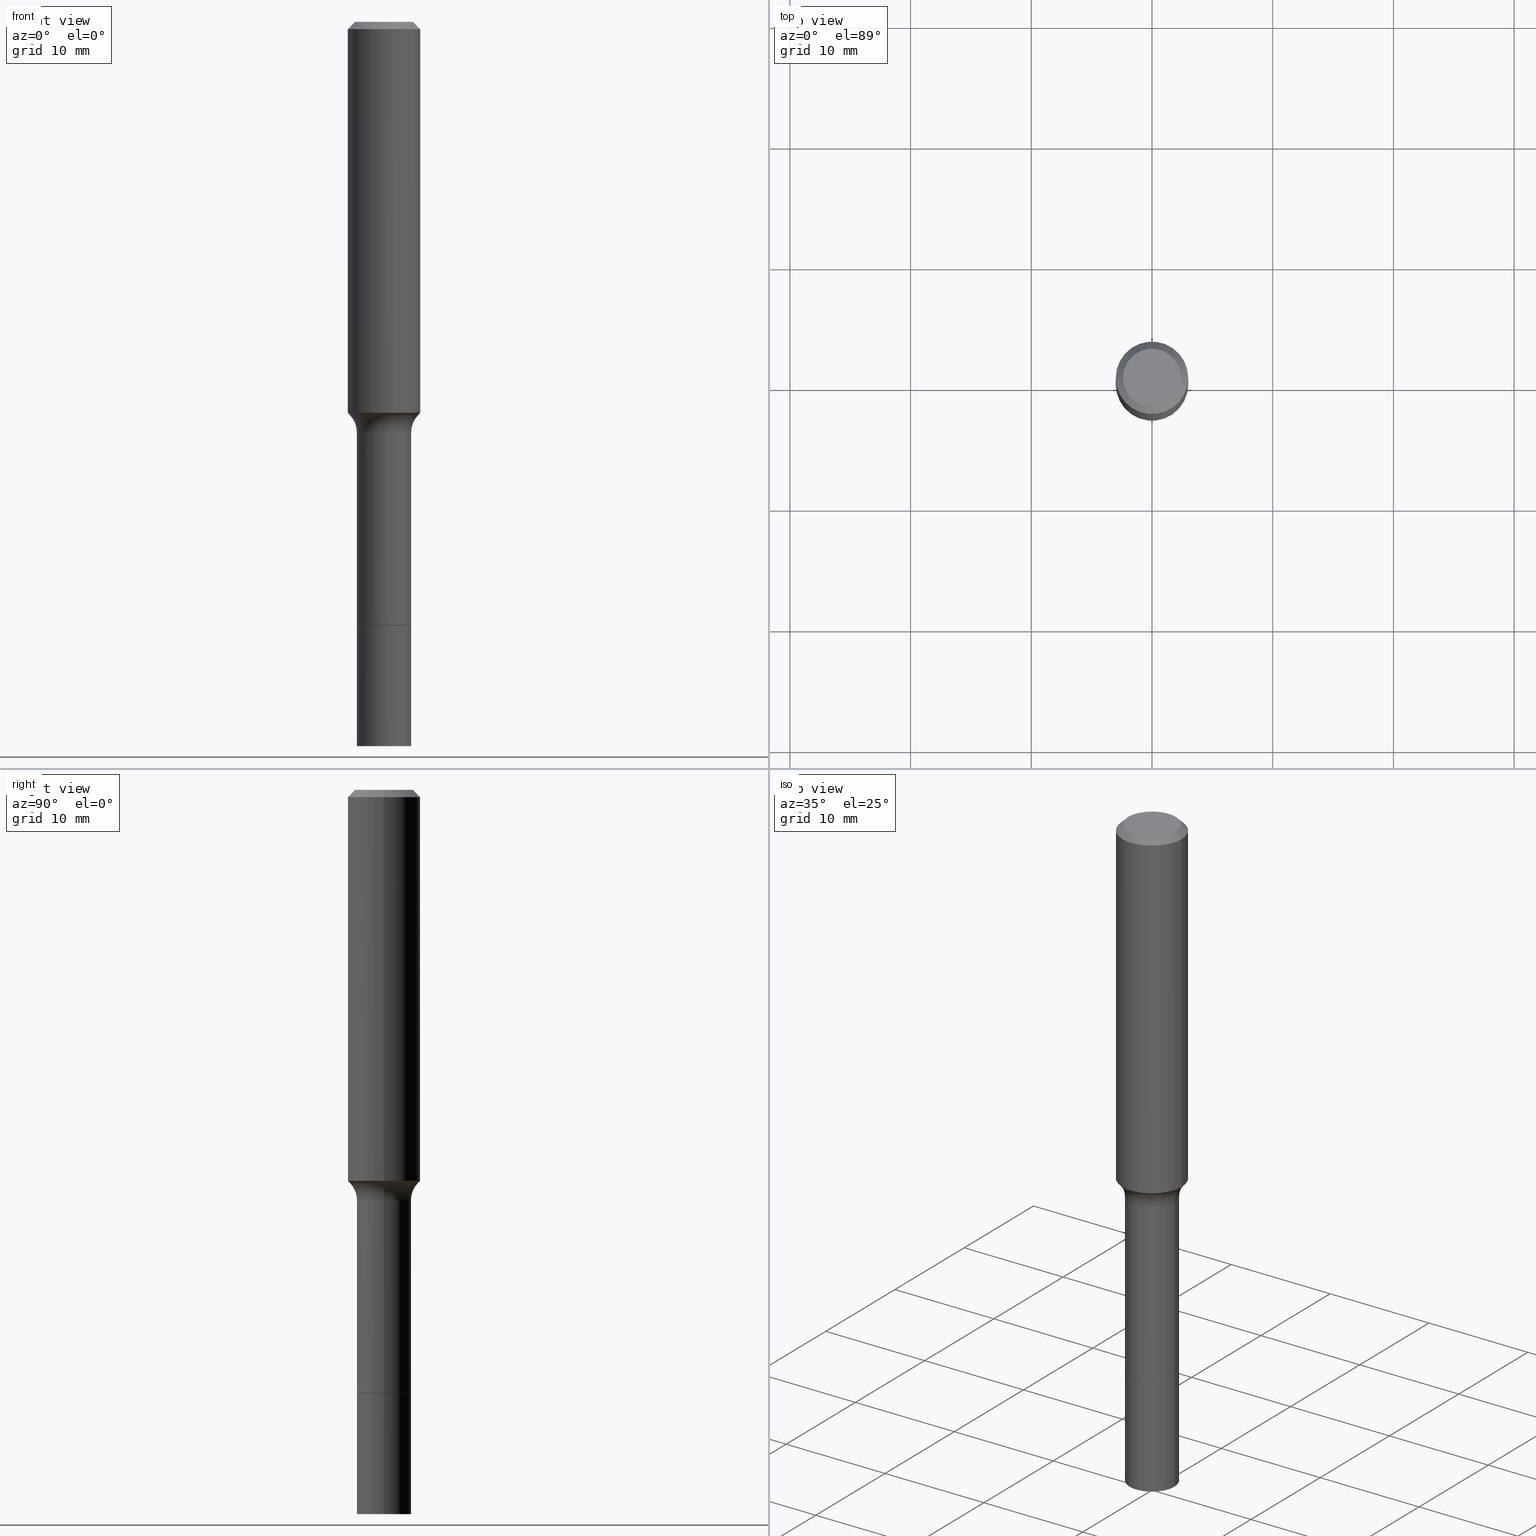
[diagram: canonical four-view strip — front | top / right | iso, engineering-drawing reading convention]
A machine part, canonical four-view strip (front | top / right | iso — engineering-drawing reading convention). The complete STEP part file that produces these views, byte-faithful:
ISO-10303-21;
HEADER;
FILE_DESCRIPTION (( 'STEP AP203' ),
    '1' );
FILE_NAME ('67090.STEP',
    '2025-04-01T15:28:09',
    ( '' ),
    ( '' ),
    'SwSTEP 2.0',
    'SolidWorks 2024',
    '' );
FILE_SCHEMA (( 'CONFIG_CONTROL_DESIGN' ));
ENDSEC;

DATA;
#1 = DIRECTION ( 'NONE',  ( 1.000000000000000000, -6.982962677686262766E-15, 0.000000000000000000 ) ) ;
#2 = AXIS2_PLACEMENT_3D ( 'NONE', #116, #88, #496 ) ;
#3 = AXIS2_PLACEMENT_3D ( 'NONE', #336, #412, #455 ) ;
#4 = CARTESIAN_POINT ( 'NONE',  ( 0.1180999999999999966, -9.071566814582237199E-16, -0.02362000000000014435 ) ) ;
#5 = DIRECTION ( 'NONE',  ( 2.438088387897960049E-29, -3.491481338843145188E-15, -1.000000000000000000 ) ) ;
#6 = ORIENTED_EDGE ( 'NONE', *, *, #467, .F. ) ;
#7 = COORDINATED_UNIVERSAL_TIME_OFFSET ( 5, 0, .BEHIND. ) ;
#8 = FACE_OUTER_BOUND ( 'NONE', #444, .T. ) ;
#9 = VERTEX_POINT ( 'NONE', #100 ) ;
#10 = ADVANCED_FACE ( 'NONE', ( #299 ), #511, .T. ) ;
#11 = AXIS2_PLACEMENT_3D ( 'NONE', #398, #5, #199 ) ;
#12 = LOCAL_TIME ( 11, 28, 9.000000000000000000, #339 ) ;
#13 = CARTESIAN_POINT ( 'NONE',  ( 4.813171704333585481E-29, -6.871933571111078805E-15, -1.968199999999999950 ) ) ;
#14 = ORIENTED_EDGE ( 'NONE', *, *, #29, .T. ) ;
#15 = CARTESIAN_POINT ( 'NONE',  ( 0.08859999999999994269, -6.186904932430028543E-16, 4.320292623355196663E-30 ) ) ;
#16 = ORIENTED_EDGE ( 'NONE', *, *, #171, .F. ) ;
#17 = EDGE_CURVE ( 'NONE', #411, #164, #513, .T. ) ;
#18 = FACE_OUTER_BOUND ( 'NONE', #328, .T. ) ;
#19 = ORIENTED_EDGE ( 'NONE', *, *, #249, .F. ) ;
#20 = CIRCLE ( 'NONE', #435, 0.08859999999999999820 ) ;
#21 = VECTOR ( 'NONE', #181, 39.37007874015748143 ) ;
#22 = DIRECTION ( 'NONE',  ( -2.445468806185136877E-29, 3.491481338843145188E-15, 1.000000000000000000 ) ) ;
#23 = CARTESIAN_POINT ( 'NONE',  ( -0.08860000000000010922, -6.930214530979727604E-15, -2.362200000000000077 ) ) ;
#24 = ORIENTED_EDGE ( 'NONE', *, *, #35, .F. ) ;
#25 = FACE_OUTER_BOUND ( 'NONE', #501, .T. ) ;
#26 = AXIS2_PLACEMENT_3D ( 'NONE', #436, #151, #187 ) ;
#27 = ORIENTED_EDGE ( 'NONE', *, *, #202, .T. ) ;
#28 = ORIENTED_EDGE ( 'NONE', *, *, #29, .F. ) ;
#29 = EDGE_CURVE ( 'NONE', #495, #330, #474, .T. ) ;
#30 = CARTESIAN_POINT ( 'NONE',  ( 4.813171704333585481E-29, -6.871933571111078805E-15, -1.968199999999999950 ) ) ;
#31 = CIRCLE ( 'NONE', #371, 0.07999999999999996003 ) ;
#32 = CARTESIAN_POINT ( 'NONE',  ( 4.811948969930493801E-29, -6.870187830441658090E-15, -1.967700000000000227 ) ) ;
#33 = CARTESIAN_POINT ( 'NONE',  ( 3.118100589234994033E-29, -4.451821259144535962E-15, -1.275052285005076280 ) ) ;
#34 = DIRECTION ( 'NONE',  ( -2.445468806185136597E-29, 3.491481338843145583E-15, 1.000000000000000000 ) ) ;
#35 = EDGE_CURVE ( 'NONE', #245, #253, #180, .T. ) ;
#36 = CYLINDRICAL_SURFACE ( 'NONE', #128, 0.1181000000000000660 ) ;
#37 = AXIS2_PLACEMENT_3D ( 'NONE', #356, #160, #318 ) ;
#38 = APPROVAL_ROLE ( '' ) ;
#39 = CARTESIAN_POINT ( 'NONE',  ( 3.139101899204769565E-29, -4.481805563857511051E-15, -1.283640131195000311 ) ) ;
#40 = ORIENTED_EDGE ( 'NONE', *, *, #409, .F. ) ;
#41 = EDGE_CURVE ( 'NONE', #447, #158, #143, .T. ) ;
#42 = DIRECTION ( 'NONE',  ( 1.000000000000000000, -6.982962677686266711E-15, 0.000000000000000000 ) ) ;
#43 = ORIENTED_EDGE ( 'NONE', *, *, #117, .F. ) ;
#44 = DATE_AND_TIME ( #316, #335 ) ;
#45 = PLANE ( 'NONE',  #169 ) ;
#46 = EDGE_LOOP ( 'NONE', ( #27, #132, #286, #168 ) ) ;
#47 = CIRCLE ( 'NONE', #488, 0.09447999999999998066 ) ;
#48 = DIRECTION ( 'NONE',  ( -2.445468806185136597E-29, 3.491481338843145583E-15, 1.000000000000000000 ) ) ;
#49 = ORIENTED_EDGE ( 'NONE', *, *, #110, .F. ) ;
#50 = EDGE_CURVE ( 'NONE', #379, #9, #479, .T. ) ;
#51 = CARTESIAN_POINT ( 'NONE',  ( 4.813171704333585481E-29, -6.871933571111078805E-15, -1.968199999999999950 ) ) ;
#52 = EDGE_LOOP ( 'NONE', ( #43, #231, #331, #382 ) ) ;
#53 = DIRECTION ( 'NONE',  ( -2.445468806185136597E-29, 3.491481338843145583E-15, 1.000000000000000000 ) ) ;
#54 = DIRECTION ( 'NONE',  ( 1.000000000000000000, -6.982962677686265133E-15, 0.000000000000000000 ) ) ;
#55 = AXIS2_PLACEMENT_3D ( 'NONE', #177, #112, #385 ) ;
#56 = CIRCLE ( 'NONE', #344, 0.09447999999999998066 ) ;
#57 = DIRECTION ( 'NONE',  ( -2.445468806185136597E-29, 3.491481338843145583E-15, 1.000000000000000000 ) ) ;
#58 = ORIENTED_EDGE ( 'NONE', *, *, #284, .T. ) ;
#59 = DIRECTION ( 'NONE',  ( 1.000000000000000000, -6.982962677686264344E-15, 0.000000000000000000 ) ) ;
#60 = EDGE_CURVE ( 'NONE', #208, #354, #47, .T. ) ;
#61 = CARTESIAN_POINT ( 'NONE',  ( 3.139101899204769565E-29, -4.481805563857511051E-15, -1.283640131195000311 ) ) ;
#62 = DIRECTION ( 'NONE',  ( 1.000000000000000000, -6.982962677686266711E-15, 4.876176775795936353E-29 ) ) ;
#63 = LOCAL_TIME ( 11, 28, 9.000000000000000000, #392 ) ;
#64 = DIRECTION ( 'NONE',  ( -0.7071067811866199593, 7.493145998870616062E-15, 0.7071067811864750752 ) ) ;
#65 = EDGE_CURVE ( 'NONE', #9, #245, #137, .T. ) ;
#66 = CARTESIAN_POINT ( 'NONE',  ( 4.813171704333585481E-29, -6.871933571111078805E-15, -1.968199999999999950 ) ) ;
#67 = CALENDAR_DATE ( 2025, 1, 4 ) ;
#68 = DIRECTION ( 'NONE',  ( -2.445468806185136597E-29, 3.491481338843145583E-15, 1.000000000000000000 ) ) ;
#69 = CONICAL_SURFACE ( 'NONE', #459, 0.1100917038704662398, 0.7504915783575496491 ) ;
#70 = DIRECTION ( 'NONE',  ( 1.000000000000000000, -6.982962677686269077E-15, 0.000000000000000000 ) ) ;
#71 = DIRECTION ( 'NONE',  ( -2.445468806185136597E-29, 3.491481338843145583E-15, 1.000000000000000000 ) ) ;
#72 = ADVANCED_FACE ( 'NONE', ( #25 ), #428, .T. ) ;
#73 = DIRECTION ( 'NONE',  ( 1.000000000000000000, -6.982962677686266711E-15, 4.876176775795936353E-29 ) ) ;
#74 = DATE_AND_TIME ( #105, #63 ) ;
#75 = DIRECTION ( 'NONE',  ( -1.000000000000000000, 7.105427357601001859E-15, 0.000000000000000000 ) ) ;
#76 = AXIS2_PLACEMENT_3D ( 'NONE', #478, #309, #481 ) ;
#77 = CIRCLE ( 'NONE', #153, 0.08859999999999999820 ) ;
#78 = DATE_AND_TIME ( #439, #350 ) ;
#79 = EDGE_CURVE ( 'NONE', #281, #127, #395, .T. ) ;
#80 = LINE ( 'NONE', #167, #272 ) ;
#81 = EDGE_LOOP ( 'NONE', ( #236, #40 ) ) ;
#82 = PERSON_AND_ORGANIZATION ( #243, #360 ) ;
#83 = CARTESIAN_POINT ( 'NONE',  ( 4.813171704333585481E-29, -6.871933571111078805E-15, -1.968199999999999950 ) ) ;
#84 = EDGE_LOOP ( 'NONE', ( #174, #119 ) ) ;
#85 = DIRECTION ( 'NONE',  ( 1.000000000000000000, -6.982962677686266711E-15, 4.876176775795936353E-29 ) ) ;
#86 = MANIFOLD_SOLID_BREP ( 'Body-Move/Copy2[1]', #263 ) ;
#87 = ORIENTED_EDGE ( 'NONE', *, *, #257, .T. ) ;
#88 = DIRECTION ( 'NONE',  ( -2.445468806185136597E-29, 3.491481338843145583E-15, 1.000000000000000000 ) ) ;
#89 = ORIENTED_EDGE ( 'NONE', *, *, #17, .F. ) ;
#90 = DIRECTION ( 'NONE',  ( 1.000000000000000000, 0.000000000000000000, 0.000000000000000000 ) ) ;
#91 = ORIENTED_EDGE ( 'NONE', *, *, #110, .T. ) ;
#92 = CARTESIAN_POINT ( 'NONE',  ( 3.272526356436949336E-29, -4.672300327639896745E-15, -1.338200000000000056 ) ) ;
#93 = ORIENTED_EDGE ( 'NONE', *, *, #509, .T. ) ;
#94 = AXIS2_PLACEMENT_3D ( 'NONE', #51, #122, #282 ) ;
#95 = CC_DESIGN_PERSON_AND_ORGANIZATION_ASSIGNMENT ( #512, #349, ( #277 ) ) ;
#96 = VECTOR ( 'NONE', #466, 39.37007874015748143 ) ;
#97 = CARTESIAN_POINT ( 'NONE',  ( 0.08809999999999999776, -7.487132583015239540E-15, -1.968199999999999950 ) ) ;
#98 = DIRECTION ( 'NONE',  ( -2.445468806185136597E-29, 3.491481338843145583E-15, 1.000000000000000000 ) ) ;
#99 =( NAMED_UNIT ( * ) SI_UNIT ( $, .STERADIAN. ) SOLID_ANGLE_UNIT ( ) );
#100 = CARTESIAN_POINT ( 'NONE',  ( -0.08809999999999999776, -6.243296193732320441E-15, -1.968199999999999950 ) ) ;
#101 =( LENGTH_UNIT ( ) NAMED_UNIT ( * ) SI_UNIT ( $, .METRE. ) );
#102 = DIRECTION ( 'NONE',  ( -2.445468806185136597E-29, 3.491481338843145583E-15, 1.000000000000000000 ) ) ;
#103 = ADVANCED_FACE ( 'NONE', ( #267 ), #200, .T. ) ;
#104 = VECTOR ( 'NONE', #22, 39.37007874015748143 ) ;
#105 = CALENDAR_DATE ( 2025, 1, 4 ) ;
#106 = DIRECTION ( 'NONE',  ( -2.445468806185136597E-29, 3.491481338843145583E-15, 1.000000000000000000 ) ) ;
#107 = PERSON_AND_ORGANIZATION_ROLE ( 'classification_officer' ) ;
#108 = DIRECTION ( 'NONE',  ( -6.982962677686266711E-15, -1.000000000000000000, 3.491481338843145583E-15 ) ) ;
#109 = CARTESIAN_POINT ( 'NONE',  ( 0.1180999999999999966, -8.926936027602933910E-16, -0.02362000000000014435 ) ) ;
#110 = EDGE_CURVE ( 'NONE', #495, #454, #416, .T. ) ;
#111 = CIRCLE ( 'NONE', #254, 0.1181000000000001493 ) ;
#112 = DIRECTION ( 'NONE',  ( -2.445468806185136597E-29, 3.491481338843145583E-15, 1.000000000000000000 ) ) ;
#113 = SECURITY_CLASSIFICATION ( '', '', #147 ) ;
#114 = CARTESIAN_POINT ( 'NONE',  ( -0.1180999999999999966, -1.427994053251326329E-15, -0.02362000000000014435 ) ) ;
#115 = PERSON_AND_ORGANIZATION ( #243, #360 ) ;
#116 = CARTESIAN_POINT ( 'NONE',  ( 5.776686413970529753E-29, -8.247577218615279626E-15, -2.362200000000000077 ) ) ;
#117 = EDGE_CURVE ( 'NONE', #281, #240, #304, .T. ) ;
#118 = FACE_OUTER_BOUND ( 'NONE', #52, .T. ) ;
#119 = ORIENTED_EDGE ( 'NONE', *, *, #249, .T. ) ;
#120 = CC_DESIGN_APPROVAL ( #341, ( #417 ) ) ;
#121 = PERSON_AND_ORGANIZATION ( #243, #360 ) ;
#122 = DIRECTION ( 'NONE',  ( -2.445468806185136597E-29, 3.491481338843145583E-15, 1.000000000000000000 ) ) ;
#123 = ORIENTED_EDGE ( 'NONE', *, *, #300, .T. ) ;
#124 = CARTESIAN_POINT ( 'NONE',  ( 0.09447999999999998066, -7.704367267948738690E-16, -3.085620075131172158E-17 ) ) ;
#125 = ORIENTED_EDGE ( 'NONE', *, *, #17, .T. ) ;
#126 = DIRECTION ( 'NONE',  ( -2.445468806185136597E-29, 3.491481338843145583E-15, 1.000000000000000000 ) ) ;
#127 = VERTEX_POINT ( 'NONE', #154 ) ;
#128 = AXIS2_PLACEMENT_3D ( 'NONE', #346, #262, #306 ) ;
#129 = CC_DESIGN_APPROVAL ( #383, ( #113 ) ) ;
#130 = FACE_OUTER_BOUND ( 'NONE', #248, .T. ) ;
#131 = CC_DESIGN_PERSON_AND_ORGANIZATION_ASSIGNMENT ( #121, #107, ( #113 ) ) ;
#132 = ORIENTED_EDGE ( 'NONE', *, *, #117, .T. ) ;
#133 = DIRECTION ( 'NONE',  ( 1.000000000000000000, -6.982962677686267499E-15, 4.883557194083112901E-29 ) ) ;
#134 = ORIENTED_EDGE ( 'NONE', *, *, #414, .F. ) ;
#135 = EDGE_CURVE ( 'NONE', #495, #127, #345, .T. ) ;
#136 = DIRECTION ( 'NONE',  ( 2.445468806185136597E-29, -3.491481338843145583E-15, -1.000000000000000000 ) ) ;
#137 = LINE ( 'NONE', #215, #178 ) ;
#138 = VECTOR ( 'NONE', #271, 39.37007874015748143 ) ;
#139 = DIRECTION ( 'NONE',  ( -1.000000000000000000, 6.982962677686266711E-15, 0.000000000000000000 ) ) ;
#140 = VERTEX_POINT ( 'NONE', #4 ) ;
#141 = EDGE_CURVE ( 'NONE', #354, #140, #265, .T. ) ;
#142 = LENGTH_MEASURE_WITH_UNIT ( LENGTH_MEASURE( 0.02539999999999999897 ), #101 );
#143 = LINE ( 'NONE', #260, #261 ) ;
#144 = APPROVAL_STATUS ( 'not_yet_approved' ) ;
#145 = EDGE_LOOP ( 'NONE', ( #6, #123, #364, #49 ) ) ;
#146 = AXIS2_PLACEMENT_3D ( 'NONE', #361, #48, #353 ) ;
#147 = SECURITY_CLASSIFICATION_LEVEL ( 'unclassified' ) ;
#148 = CARTESIAN_POINT ( 'NONE',  ( -0.08859999999999991493, -5.141703215157328173E-15, -1.338200000000000056 ) ) ;
#149 = FACE_OUTER_BOUND ( 'NONE', #206, .T. ) ;
#150 = ADVANCED_FACE ( 'NONE', ( #342 ), #161, .F. ) ;
#151 = DIRECTION ( 'NONE',  ( -2.445468806185136597E-29, 3.491481338843145583E-15, 1.000000000000000000 ) ) ;
#152 = PRODUCT_RELATED_PRODUCT_CATEGORY ( 'detail', '', ( #391 ) ) ;
#153 = AXIS2_PLACEMENT_3D ( 'NONE', #219, #210, #505 ) ;
#154 = CARTESIAN_POINT ( 'NONE',  ( 0.1181000000000001493, -5.276509151379284224E-15, -1.275052285005076280 ) ) ;
#155 = APPROVAL_ROLE ( '' ) ;
#156 = DIRECTION ( 'NONE',  ( 1.000000000000000000, -6.982962677686267499E-15, 4.883557194083112901E-29 ) ) ;
#157 = CARTESIAN_POINT ( 'NONE',  ( 4.813171704333585481E-29, -6.871933571111078805E-15, -1.968199999999999950 ) ) ;
#158 = VERTEX_POINT ( 'NONE', #515 ) ;
#159 = CALENDAR_DATE ( 2025, 1, 4 ) ;
#160 = DIRECTION ( 'NONE',  ( -2.445468806185136597E-29, 3.491481338843145583E-15, 1.000000000000000000 ) ) ;
#161 = TOROIDAL_SURFACE ( 'NONE', #334, 0.1685999999999998888, 0.07999999999999994615 ) ;
#162 = ORIENTED_EDGE ( 'NONE', *, *, #424, .F. ) ;
#163 = FACE_OUTER_BOUND ( 'NONE', #314, .T. ) ;
#164 = VERTEX_POINT ( 'NONE', #311 ) ;
#165 = FACE_OUTER_BOUND ( 'NONE', #471, .T. ) ;
#166 = VERTEX_POINT ( 'NONE', #434 ) ;
#167 = CARTESIAN_POINT ( 'NONE',  ( 0.1181000000000000660, -8.246878922347485584E-16, 5.758764772215003944E-30 ) ) ;
#168 = ORIENTED_EDGE ( 'NONE', *, *, #293, .F. ) ;
#169 = AXIS2_PLACEMENT_3D ( 'NONE', #157, #446, #313 ) ;
#170 =( CONVERSION_BASED_UNIT ( 'INCH', #142 ) LENGTH_UNIT ( ) NAMED_UNIT ( #358 ) );
#171 = EDGE_CURVE ( 'NONE', #166, #245, #20, .T. ) ;
#172 = CARTESIAN_POINT ( 'NONE',  ( 7.545787641473140628E-46, -1.077338491108201769E-31, -3.085620075131671975E-17 ) ) ;
#173 = CARTESIAN_POINT ( 'NONE',  ( 4.813171704333585481E-29, -6.871933571111078805E-15, -1.968199999999999950 ) ) ;
#174 = ORIENTED_EDGE ( 'NONE', *, *, #480, .T. ) ;
#175 = UNCERTAINTY_MEASURE_WITH_UNIT (LENGTH_MEASURE( 1.000000000000000082E-05 ), #170, 'distance_accuracy_value', 'NONE');
#176 = LINE ( 'NONE', #296, #96 ) ;
#177 = CARTESIAN_POINT ( 'NONE',  ( 4.813171704333585481E-29, -6.871933571111078805E-15, -1.968199999999999950 ) ) ;
#178 = VECTOR ( 'NONE', #64, 39.37007874015748143 ) ;
#179 = CIRCLE ( 'NONE', #387, 0.08860000000000013698 ) ;
#180 = LINE ( 'NONE', #337, #104 ) ;
#181 = DIRECTION ( 'NONE',  ( 0.7071067811866199593, -2.468850131083015945E-15, 0.7071067811864750752 ) ) ;
#182 = ORIENTED_EDGE ( 'NONE', *, *, #424, .T. ) ;
#183 = PERSON_AND_ORGANIZATION_ROLE ( 'design_owner' ) ;
#184 = FACE_OUTER_BOUND ( 'NONE', #46, .T. ) ;
#185 = AXIS2_PLACEMENT_3D ( 'NONE', #61, #98, #54 ) ;
#186 = APPROVAL_PERSON_ORGANIZATION ( #82, #188, #401 ) ;
#187 = DIRECTION ( 'NONE',  ( 1.000000000000000000, -6.982962677686264344E-15, 0.000000000000000000 ) ) ;
#188 = APPROVAL ( #303, 'UNSPECIFIED' ) ;
#189 = CARTESIAN_POINT ( 'NONE',  ( -0.09447999999999998066, 7.009847083995354710E-16, -3.085620075132147757E-17 ) ) ;
#190 = DIRECTION ( 'NONE',  ( 0.7071067811865460184, -7.319954787623251312E-15, -0.7071067811865490160 ) ) ;
#191 = ADVANCED_FACE ( 'NONE', ( #390 ), #393, .T. ) ;
#192 = AXIS2_PLACEMENT_3D ( 'NONE', #443, #399, #85 ) ;
#193 = CARTESIAN_POINT ( 'NONE',  ( 0.1685999999999998888, -5.849627835097799772E-15, -1.338200000000000056 ) ) ;
#194 = DIRECTION ( 'NONE',  ( 1.000000000000000000, -6.982962677686265133E-15, 0.000000000000000000 ) ) ;
#195 = ORIENTED_EDGE ( 'NONE', *, *, #467, .T. ) ;
#196 = PERSON_AND_ORGANIZATION ( #243, #360 ) ;
#197 = FACE_OUTER_BOUND ( 'NONE', #319, .T. ) ;
#198 = ORIENTED_EDGE ( 'NONE', *, *, #60, .F. ) ;
#199 = DIRECTION ( 'NONE',  ( -1.000000000000000000, 6.982962677686265922E-15, -4.876176775795935793E-29 ) ) ;
#200 = CONICAL_SURFACE ( 'NONE', #317, 0.1100917038704662398, 0.7504915783575496491 ) ;
#201 = ORIENTED_EDGE ( 'NONE', *, *, #135, .F. ) ;
#202 = EDGE_CURVE ( 'NONE', #127, #281, #111, .T. ) ;
#203 = TOROIDAL_SURFACE ( 'NONE', #406, 0.1685999999999998888, 0.07999999999999994615 ) ;
#204 = CLOSED_SHELL ( 'NONE', ( #315, #397, #229, #103, #150, #10, #191, #500, #269, #373, #476, #365, #347, #308 ) ) ;
#205 = CARTESIAN_POINT ( 'NONE',  ( -0.1100917038704662398, -3.699556959331392522E-15, -1.283640131195000311 ) ) ;
#206 = EDGE_LOOP ( 'NONE', ( #87, #125, #408, #368 ) ) ;
#207 = LINE ( 'NONE', #15, #138 ) ;
#208 = VERTEX_POINT ( 'NONE', #189 ) ;
#209 = ADVANCED_FACE ( 'NONE', ( #149 ), #517, .T. ) ;
#210 = DIRECTION ( 'NONE',  ( -2.445468806185136597E-29, 3.491481338843145583E-15, 1.000000000000000000 ) ) ;
#211 = ORIENTED_EDGE ( 'NONE', *, *, #352, .F. ) ;
#212 = VECTOR ( 'NONE', #475, 39.37007874015748143 ) ;
#213 = LOCAL_TIME ( 11, 28, 9.000000000000000000, #7 ) ;
#214 = DIRECTION ( 'NONE',  ( 1.000000000000000000, -6.982962677686264344E-15, 0.000000000000000000 ) ) ;
#215 = CARTESIAN_POINT ( 'NONE',  ( -0.08809999999999999776, -6.245945420906430853E-15, -1.968199999999999950 ) ) ;
#216 = DIRECTION ( 'NONE',  ( -2.445468806185136597E-29, 3.491481338843145583E-15, 1.000000000000000000 ) ) ;
#217 = DIRECTION ( 'NONE',  ( -2.445468806185136877E-29, 3.491481338843145188E-15, 1.000000000000000000 ) ) ;
#218 = CIRCLE ( 'NONE', #37, 0.08859999999999991493 ) ;
#219 = CARTESIAN_POINT ( 'NONE',  ( 4.813171704333585481E-29, -6.871933571111078805E-15, -1.968199999999999950 ) ) ;
#220 = EDGE_LOOP ( 'NONE', ( #14, #290, #258, #201 ) ) ;
#221 = SHAPE_DEFINITION_REPRESENTATION ( #465, #464 ) ;
#222 = DIRECTION ( 'NONE',  ( -2.445468806185136597E-29, 3.491481338843145583E-15, 1.000000000000000000 ) ) ;
#223 = CC_DESIGN_PERSON_AND_ORGANIZATION_ASSIGNMENT ( #196, #183, ( #391 ) ) ;
#224 = CARTESIAN_POINT ( 'NONE',  ( 0.000000000000000000, 0.000000000000000000, 0.000000000000000000 ) ) ;
#225 = VECTOR ( 'NONE', #320, 39.37007874015748143 ) ;
#226 = CIRCLE ( 'NONE', #516, 0.08809999999999999776 ) ;
#227 = CARTESIAN_POINT ( 'NONE',  ( 3.139101899204769565E-29, -4.481805563857511051E-15, -1.283640131195000311 ) ) ;
#228 = DIRECTION ( 'NONE',  ( -2.445468806185136597E-29, 3.491481338843145583E-15, 1.000000000000000000 ) ) ;
#229 = ADVANCED_FACE ( 'NONE', ( #184 ), #36, .T. ) ;
#230 = DIRECTION ( 'NONE',  ( -2.445468806185136597E-29, 3.491481338843145583E-15, 1.000000000000000000 ) ) ;
#231 = ORIENTED_EDGE ( 'NONE', *, *, #79, .T. ) ;
#232 = PERSON_AND_ORGANIZATION ( #243, #360 ) ;
#233 = PLANE ( 'NONE',  #11 ) ;
#234 = DATE_AND_TIME ( #67, #213 ) ;
#235 = CARTESIAN_POINT ( 'NONE',  ( -0.1685999999999998888, -3.474325275148368819E-15, -1.338200000000000056 ) ) ;
#236 = ORIENTED_EDGE ( 'NONE', *, *, #257, .F. ) ;
#237 = DATE_TIME_ROLE ( 'creation_date' ) ;
#238 = ADVANCED_FACE ( 'NONE', ( #348 ), #432, .T. ) ;
#239 = DIRECTION ( 'NONE',  ( 1.000000000000000000, -6.982962677686264344E-15, 0.000000000000000000 ) ) ;
#240 = VERTEX_POINT ( 'NONE', #114 ) ;
#241 = CARTESIAN_POINT ( 'NONE',  ( 0.08809999999999999776, -7.487132583015239540E-15, -1.968199999999999950 ) ) ;
#242 = AXIS2_PLACEMENT_3D ( 'NONE', #193, #108, #1 ) ;
#243 = PERSON ( 'UNSPECIFIED', 'UNSPECIFIED', 'UNSPECIFIED', ('UNSPECIFIED'), ('UNSPECIFIED'), ('UNSPECIFIED') ) ;
#244 = CIRCLE ( 'NONE', #450, 0.08859999999999999820 ) ;
#245 = VERTEX_POINT ( 'NONE', #431 ) ;
#246 = APPROVAL_PERSON_ORGANIZATION ( #485, #341, #155 ) ;
#247 = FACE_OUTER_BOUND ( 'NONE', #84, .T. ) ;
#248 = EDGE_LOOP ( 'NONE', ( #295, #28, #91, #502 ) ) ;
#249 = EDGE_CURVE ( 'NONE', #164, #158, #307, .T. ) ;
#250 = DESIGN_CONTEXT ( 'detailed design', #369, 'design' ) ;
#251 = DIRECTION ( 'NONE',  ( 1.000000000000000000, -6.982962677686269077E-15, 0.000000000000000000 ) ) ;
#252 = ORIENTED_EDGE ( 'NONE', *, *, #493, .T. ) ;
#253 = VERTEX_POINT ( 'NONE', #148 ) ;
#254 = AXIS2_PLACEMENT_3D ( 'NONE', #33, #230, #351 ) ;
#255 = CARTESIAN_POINT ( 'NONE',  ( 4.811948969930493801E-29, -6.870187830441658090E-15, -1.967700000000000227 ) ) ;
#256 = ORIENTED_EDGE ( 'NONE', *, *, #380, .F. ) ;
#257 = EDGE_CURVE ( 'NONE', #447, #411, #514, .T. ) ;
#258 = ORIENTED_EDGE ( 'NONE', *, *, #202, .F. ) ;
#259 = CARTESIAN_POINT ( 'NONE',  ( 0.08860000000000013698, -8.866267711858282579E-15, -2.362200000000000077 ) ) ;
#260 = CARTESIAN_POINT ( 'NONE',  ( 0.08860000000000006759, -7.490624064354082547E-15, -1.968199999999999950 ) ) ;
#261 = VECTOR ( 'NONE', #297, 39.37007874015748143 ) ;
#262 = DIRECTION ( 'NONE',  ( -2.445468806185136597E-29, 3.491481338843145583E-15, 1.000000000000000000 ) ) ;
#263 = CLOSED_SHELL ( 'NONE', ( #209, #238, #72, #264 ) ) ;
#264 = ADVANCED_FACE ( 'NONE', ( #247 ), #45, .F. ) ;
#265 = LINE ( 'NONE', #109, #441 ) ;
#266 = AXIS2_PLACEMENT_3D ( 'NONE', #30, #34, #305 ) ;
#267 = FACE_OUTER_BOUND ( 'NONE', #220, .T. ) ;
#268 = CARTESIAN_POINT ( 'NONE',  ( 0.1100917038704662398, -5.250571823107865160E-15, -1.283640131195000311 ) ) ;
#269 = ADVANCED_FACE ( 'NONE', ( #410 ), #69, .T. ) ;
#270 = DATE_AND_TIME ( #159, #12 ) ;
#271 = DIRECTION ( 'NONE',  ( -2.445468806185136877E-29, 3.491481338843145188E-15, 1.000000000000000000 ) ) ;
#272 = VECTOR ( 'NONE', #451, 39.37007874015748143 ) ;
#273 = AXIS2_PLACEMENT_3D ( 'NONE', #332, #415, #462 ) ;
#274 = CYLINDRICAL_SURFACE ( 'NONE', #192, 0.1181000000000000660 ) ;
#275 = ORIENTED_EDGE ( 'NONE', *, *, #50, .T. ) ;
#276 = APPROVAL_DATE_TIME ( #44, #188 ) ;
#277 = PRODUCT_DEFINITION ( 'UNKNOWN', '', #417, #250 ) ;
#278 = CARTESIAN_POINT ( 'NONE',  ( 5.776197320209328408E-31, -8.246878922347560526E-17, -0.02362000000000014435 ) ) ;
#279 = ORIENTED_EDGE ( 'NONE', *, *, #438, .F. ) ;
#280 = CARTESIAN_POINT ( 'NONE',  ( -0.1181000000000001493, -3.612670288211856187E-15, -1.275052285005076280 ) ) ;
#281 = VERTEX_POINT ( 'NONE', #280 ) ;
#282 = DIRECTION ( 'NONE',  ( 1.000000000000000000, -6.982962677686264344E-15, 0.000000000000000000 ) ) ;
#283 = VECTOR ( 'NONE', #477, 39.37007874015748143 ) ;
#284 = EDGE_CURVE ( 'NONE', #140, #240, #378, .T. ) ;
#285 = CONICAL_SURFACE ( 'NONE', #460, 0.1180999999999999966, 0.7853981633974461696 ) ;
#286 = ORIENTED_EDGE ( 'NONE', *, *, #284, .F. ) ;
#287 = ORIENTED_EDGE ( 'NONE', *, *, #41, .T. ) ;
#288 = CC_DESIGN_PERSON_AND_ORGANIZATION_ASSIGNMENT ( #115, #473, ( #417 ) ) ;
#289 = CARTESIAN_POINT ( 'NONE',  ( 7.545787641473140628E-46, -1.077338491108201769E-31, -3.085620075131671975E-17 ) ) ;
#290 = ORIENTED_EDGE ( 'NONE', *, *, #338, .T. ) ;
#291 = EDGE_LOOP ( 'NONE', ( #24, #93, #492, #256 ) ) ;
#292 = AXIS2_PLACEMENT_3D ( 'NONE', #278, #126, #42 ) ;
#293 = EDGE_CURVE ( 'NONE', #127, #140, #80, .T. ) ;
#294 = DIRECTION ( 'NONE',  ( 1.000000000000000000, -6.982962677686258033E-15, 0.000000000000000000 ) ) ;
#295 = ORIENTED_EDGE ( 'NONE', *, *, #300, .F. ) ;
#296 = CARTESIAN_POINT ( 'NONE',  ( -0.1180999999999999966, 7.422191030112725094E-16, -0.02362000000000014435 ) ) ;
#297 = DIRECTION ( 'NONE',  ( -2.445468806185136877E-29, 3.491481338843145188E-15, 1.000000000000000000 ) ) ;
#298 = COORDINATED_UNIVERSAL_TIME_OFFSET ( 5, 0, .BEHIND. ) ;
#299 = FACE_OUTER_BOUND ( 'NONE', #394, .T. ) ;
#300 = EDGE_CURVE ( 'NONE', #330, #253, #31, .T. ) ;
#301 = APPLICATION_CONTEXT ( 'configuration controlled 3d designs of mechanical parts and assemblies' ) ;
#302 = CIRCLE ( 'NONE', #273, 0.1100917038704662398 ) ;
#303 = APPROVAL_STATUS ( 'not_yet_approved' ) ;
#304 = LINE ( 'NONE', #483, #212 ) ;
#305 = DIRECTION ( 'NONE',  ( 1.000000000000000000, -6.982962677686263555E-15, 0.000000000000000000 ) ) ;
#306 = DIRECTION ( 'NONE',  ( 1.000000000000000000, -6.982962677686266711E-15, 4.876176775795936353E-29 ) ) ;
#307 = CIRCLE ( 'NONE', #404, 0.08859999999999999820 ) ;
#308 = ADVANCED_FACE ( 'NONE', ( #8 ), #405, .T. ) ;
#309 = DIRECTION ( 'NONE',  ( 2.438088387897960049E-29, -3.491481338843145188E-15, -1.000000000000000000 ) ) ;
#310 = MECHANICAL_CONTEXT ( 'NONE', #301, 'mechanical' ) ;
#311 = CARTESIAN_POINT ( 'NONE',  ( -0.08859999999999999820, -6.930214530979729182E-15, -1.968199999999999950 ) ) ;
#312 = PERSON_AND_ORGANIZATION_ROLE ( 'creator' ) ;
#313 = DIRECTION ( 'NONE',  ( -1.000000000000000000, 6.982962677686265922E-15, -4.876176775795935793E-29 ) ) ;
#314 = EDGE_LOOP ( 'NONE', ( #497, #456 ) ) ;
#315 = ADVANCED_FACE ( 'NONE', ( #197 ), #343, .T. ) ;
#316 = CALENDAR_DATE ( 2025, 1, 4 ) ;
#317 = AXIS2_PLACEMENT_3D ( 'NONE', #227, #71, #518 ) ;
#318 = DIRECTION ( 'NONE',  ( 1.000000000000000000, -6.982962677686264344E-15, 0.000000000000000000 ) ) ;
#319 = EDGE_LOOP ( 'NONE', ( #275, #449, #16, #162 ) ) ;
#320 = DIRECTION ( 'NONE',  ( -0.6819983600624897058, 7.399397606724253444E-15, 0.7313537016191786755 ) ) ;
#321 = ORIENTED_EDGE ( 'NONE', *, *, #135, .T. ) ;
#322 = EDGE_CURVE ( 'NONE', #454, #253, #386, .T. ) ;
#323 = DIRECTION ( 'NONE',  ( -2.438088387897960049E-29, 3.491481338843145188E-15, 1.000000000000000000 ) ) ;
#324 = ORIENTED_EDGE ( 'NONE', *, *, #389, .T. ) ;
#325 = DIRECTION ( 'NONE',  ( 1.000000000000000000, -6.982962677686265922E-15, 4.876176775795935793E-29 ) ) ;
#326 = AXIS2_PLACEMENT_3D ( 'NONE', #407, #402, #363 ) ;
#327 = CC_DESIGN_APPROVAL ( #188, ( #277 ) ) ;
#328 = EDGE_LOOP ( 'NONE', ( #403, #333 ) ) ;
#329 = CARTESIAN_POINT ( 'NONE',  ( 5.776197320209328408E-31, -8.246878922347560526E-17, -0.02362000000000014435 ) ) ;
#330 = VERTEX_POINT ( 'NONE', #491 ) ;
#331 = ORIENTED_EDGE ( 'NONE', *, *, #293, .T. ) ;
#332 = CARTESIAN_POINT ( 'NONE',  ( 3.139101899204769565E-29, -4.481805563857511051E-15, -1.283640131195000311 ) ) ;
#333 = ORIENTED_EDGE ( 'NONE', *, *, #493, .F. ) ;
#334 = AXIS2_PLACEMENT_3D ( 'NONE', #437, #68, #156 ) ;
#335 = LOCAL_TIME ( 11, 28, 9.000000000000000000, #469 ) ;
#336 = CARTESIAN_POINT ( 'NONE',  ( 5.776197320209328408E-31, -8.246878922347560526E-17, -0.02362000000000014435 ) ) ;
#337 = CARTESIAN_POINT ( 'NONE',  ( -0.08859999999999994269, 6.295408638834483575E-16, -4.358176489965843464E-30 ) ) ;
#338 = EDGE_CURVE ( 'NONE', #330, #281, #448, .T. ) ;
#339 = COORDINATED_UNIVERSAL_TIME_OFFSET ( 5, 0, .BEHIND. ) ;
#340 = ORIENTED_EDGE ( 'NONE', *, *, #79, .F. ) ;
#341 = APPROVAL ( #489, 'UNSPECIFIED' ) ;
#342 = FACE_OUTER_BOUND ( 'NONE', #145, .T. ) ;
#343 = CONICAL_SURFACE ( 'NONE', #94, 0.08809999999999999776, 0.7853981633975507526 ) ;
#344 = AXIS2_PLACEMENT_3D ( 'NONE', #289, #216, #426 ) ;
#345 = LINE ( 'NONE', #268, #283 ) ;
#346 = CARTESIAN_POINT ( 'NONE',  ( 0.000000000000000000, 0.000000000000000000, 0.000000000000000000 ) ) ;
#347 = ADVANCED_FACE ( 'NONE', ( #18 ), #494, .F. ) ;
#348 = FACE_OUTER_BOUND ( 'NONE', #81, .T. ) ;
#349 = PERSON_AND_ORGANIZATION_ROLE ( 'creator' ) ;
#350 = LOCAL_TIME ( 11, 28, 9.000000000000000000, #298 ) ;
#351 = DIRECTION ( 'NONE',  ( 1.000000000000000000, -6.982962677686264344E-15, 0.000000000000000000 ) ) ;
#352 = EDGE_CURVE ( 'NONE', #166, #454, #207, .T. ) ;
#353 = DIRECTION ( 'NONE',  ( 1.000000000000000000, -6.982962677686264344E-15, 0.000000000000000000 ) ) ;
#354 = VERTEX_POINT ( 'NONE', #124 ) ;
#355 = APPLICATION_PROTOCOL_DEFINITION ( 'international standard', 'config_control_design', 1994, #369 ) ;
#356 = CARTESIAN_POINT ( 'NONE',  ( 3.272526356436949336E-29, -4.672300327639896745E-15, -1.338200000000000056 ) ) ;
#357 = ORIENTED_EDGE ( 'NONE', *, *, #171, .T. ) ;
#358 = DIMENSIONAL_EXPONENTS ( 1.000000000000000000, 0.000000000000000000, 0.000000000000000000, 0.000000000000000000, 0.000000000000000000, 0.000000000000000000, 0.000000000000000000 ) ;
#359 = CIRCLE ( 'NONE', #326, 0.1180999999999999966 ) ;
#360 = ORGANIZATION ( 'UNSPECIFIED', 'UNSPECIFIED', '' ) ;
#361 = CARTESIAN_POINT ( 'NONE',  ( 3.272526356436949336E-29, -4.672300327639896745E-15, -1.338200000000000056 ) ) ;
#362 = ORIENTED_EDGE ( 'NONE', *, *, #409, .T. ) ;
#363 = DIRECTION ( 'NONE',  ( 1.000000000000000000, -6.982962677686266711E-15, 0.000000000000000000 ) ) ;
#364 = ORIENTED_EDGE ( 'NONE', *, *, #380, .T. ) ;
#365 = ADVANCED_FACE ( 'NONE', ( #163 ), #233, .F. ) ;
#366 = VECTOR ( 'NONE', #217, 39.37007874015748143 ) ;
#367 = DIRECTION ( 'NONE',  ( -2.445468806185136597E-29, 3.491481338843145583E-15, 1.000000000000000000 ) ) ;
#368 = ORIENTED_EDGE ( 'NONE', *, *, #41, .F. ) ;
#369 = APPLICATION_CONTEXT ( 'configuration controlled 3d designs of mechanical parts and assemblies' ) ;
#370 = CARTESIAN_POINT ( 'NONE',  ( 0.08859999999999991493, -5.290990820882899698E-15, -1.338200000000000056 ) ) ;
#371 = AXIS2_PLACEMENT_3D ( 'NONE', #235, #440, #75 ) ;
#372 = EDGE_LOOP ( 'NONE', ( #452, #195, #321, #340 ) ) ;
#373 = ADVANCED_FACE ( 'NONE', ( #118 ), #274, .T. ) ;
#374 = ORIENTED_EDGE ( 'NONE', *, *, #322, .F. ) ;
#375 =( NAMED_UNIT ( * ) PLANE_ANGLE_UNIT ( ) SI_UNIT ( $, .RADIAN. ) );
#376 = ORIENTED_EDGE ( 'NONE', *, *, #141, .T. ) ;
#377 = CARTESIAN_POINT ( 'NONE',  ( 0.1100917038704661288, -5.250571823107863583E-15, -1.283640131195000311 ) ) ;
#378 = CIRCLE ( 'NONE', #292, 0.1180999999999999966 ) ;
#379 = VERTEX_POINT ( 'NONE', #241 ) ;
#380 = EDGE_CURVE ( 'NONE', #253, #454, #218, .T. ) ;
#381 = FACE_OUTER_BOUND ( 'NONE', #418, .T. ) ;
#382 = ORIENTED_EDGE ( 'NONE', *, *, #389, .F. ) ;
#383 = APPROVAL ( #144, 'UNSPECIFIED' ) ;
#384 = DIRECTION ( 'NONE',  ( 1.000000000000000000, -6.982962677686269077E-15, 0.000000000000000000 ) ) ;
#385 = DIRECTION ( 'NONE',  ( 1.000000000000000000, -6.982962677686263555E-15, 0.000000000000000000 ) ) ;
#386 = CIRCLE ( 'NONE', #146, 0.08859999999999991493 ) ;
#387 = AXIS2_PLACEMENT_3D ( 'NONE', #510, #53, #294 ) ;
#388 = DIRECTION ( 'NONE',  ( -2.445468806185136597E-29, 3.491481338843145583E-15, 1.000000000000000000 ) ) ;
#389 = EDGE_CURVE ( 'NONE', #240, #140, #359, .T. ) ;
#390 = FACE_OUTER_BOUND ( 'NONE', #291, .T. ) ;
#391 = PRODUCT ( '67090', '67090', '', ( #310 ) ) ;
#392 = COORDINATED_UNIVERSAL_TIME_OFFSET ( 5, 0, .BEHIND. ) ;
#393 = CYLINDRICAL_SURFACE ( 'NONE', #506, 0.08859999999999994269 ) ;
#394 = EDGE_LOOP ( 'NONE', ( #357, #400, #374, #211 ) ) ;
#395 = CIRCLE ( 'NONE', #26, 0.1181000000000001493 ) ;
#396 = APPROVAL_DATE_TIME ( #74, #383 ) ;
#397 = ADVANCED_FACE ( 'NONE', ( #165 ), #507, .T. ) ;
#398 = CARTESIAN_POINT ( 'NONE',  ( 3.772893820736570314E-46, -5.386692455541008845E-32, -1.542810037565835988E-17 ) ) ;
#399 = DIRECTION ( 'NONE',  ( -2.445468806185136597E-29, 3.491481338843145583E-15, 1.000000000000000000 ) ) ;
#400 = ORIENTED_EDGE ( 'NONE', *, *, #35, .T. ) ;
#401 = APPROVAL_ROLE ( '' ) ;
#402 = DIRECTION ( 'NONE',  ( -2.445468806185136597E-29, 3.491481338843145583E-15, 1.000000000000000000 ) ) ;
#403 = ORIENTED_EDGE ( 'NONE', *, *, #50, .F. ) ;
#404 = AXIS2_PLACEMENT_3D ( 'NONE', #66, #222, #384 ) ;
#405 = CONICAL_SURFACE ( 'NONE', #498, 0.08809999999999999776, 0.7853981633975507526 ) ;
#406 = AXIS2_PLACEMENT_3D ( 'NONE', #92, #420, #133 ) ;
#407 = CARTESIAN_POINT ( 'NONE',  ( 5.776197320209328408E-31, -8.246878922347560526E-17, -0.02362000000000014435 ) ) ;
#408 = ORIENTED_EDGE ( 'NONE', *, *, #480, .F. ) ;
#409 = EDGE_CURVE ( 'NONE', #411, #447, #179, .T. ) ;
#410 = FACE_OUTER_BOUND ( 'NONE', #372, .T. ) ;
#411 = VERTEX_POINT ( 'NONE', #23 ) ;
#412 = DIRECTION ( 'NONE',  ( 2.445468806185136597E-29, -3.491481338843145583E-15, -1.000000000000000000 ) ) ;
#413 = CARTESIAN_POINT ( 'NONE',  ( -0.08860000000000006759, -6.242392707227629166E-15, -1.968199999999999950 ) ) ;
#414 = EDGE_CURVE ( 'NONE', #354, #208, #56, .T. ) ;
#415 = DIRECTION ( 'NONE',  ( -2.445468806185136597E-29, 3.491481338843145583E-15, 1.000000000000000000 ) ) ;
#416 = CIRCLE ( 'NONE', #242, 0.07999999999999996003 ) ;
#417 = PRODUCT_DEFINITION_FORMATION_WITH_SPECIFIED_SOURCE ( 'ANY', '', #391, .NOT_KNOWN. ) ;
#418 = EDGE_LOOP ( 'NONE', ( #423, #198, #508, #324 ) ) ;
#419 = CC_DESIGN_DATE_AND_TIME_ASSIGNMENT ( #270, #430, ( #113 ) ) ;
#420 = DIRECTION ( 'NONE',  ( -2.445468806185136597E-29, 3.491481338843145583E-15, 1.000000000000000000 ) ) ;
#421 = CARTESIAN_POINT ( 'NONE',  ( 4.813171704333585481E-29, -6.871933571111078805E-15, -1.968199999999999950 ) ) ;
#422 = APPLICATION_PROTOCOL_DEFINITION ( 'international standard', 'config_control_design', 1994, #301 ) ;
#423 = ORIENTED_EDGE ( 'NONE', *, *, #141, .F. ) ;
#424 = EDGE_CURVE ( 'NONE', #379, #166, #503, .T. ) ;
#425 = MANIFOLD_SOLID_BREP ( 'Body-Move/Copy2[2]', #204 ) ;
#426 = DIRECTION ( 'NONE',  ( 1.000000000000000000, -6.982962677686267499E-15, 4.875432709231658792E-29 ) ) ;
#427 = AXIS2_PLACEMENT_3D ( 'NONE', #83, #323, #325 ) ;
#428 = CYLINDRICAL_SURFACE ( 'NONE', #55, 0.08860000000000006759 ) ;
#429 = CC_DESIGN_SECURITY_CLASSIFICATION ( #113, ( #417 ) ) ;
#430 = DATE_TIME_ROLE ( 'classification_date' ) ;
#431 = CARTESIAN_POINT ( 'NONE',  ( -0.08859999999999999820, -5.141703215157327384E-15, -1.967700000000000227 ) ) ;
#432 = PLANE ( 'NONE',  #76 ) ;
#433 = CC_DESIGN_DATE_AND_TIME_ASSIGNMENT ( #78, #237, ( #277 ) ) ;
#434 = CARTESIAN_POINT ( 'NONE',  ( 0.08859999999999999820, -7.488878323684661832E-15, -1.967700000000000227 ) ) ;
#435 = AXIS2_PLACEMENT_3D ( 'NONE', #32, #228, #70 ) ;
#436 = CARTESIAN_POINT ( 'NONE',  ( 3.118100589234994033E-29, -4.451821259144535962E-15, -1.275052285005076280 ) ) ;
#437 = CARTESIAN_POINT ( 'NONE',  ( 3.272526356436949336E-29, -4.672300327639896745E-15, -1.338200000000000056 ) ) ;
#438 = EDGE_CURVE ( 'NONE', #208, #240, #176, .T. ) ;
#439 = CALENDAR_DATE ( 2025, 1, 4 ) ;
#440 = DIRECTION ( 'NONE',  ( 7.105427357601001859E-15, 1.000000000000000000, -3.491481338843145583E-15 ) ) ;
#441 = VECTOR ( 'NONE', #190, 39.37007874015748143 ) ;
#442 = AXIS2_PLACEMENT_3D ( 'NONE', #458, #453, #90 ) ;
#443 = CARTESIAN_POINT ( 'NONE',  ( 0.000000000000000000, 0.000000000000000000, 0.000000000000000000 ) ) ;
#444 = EDGE_LOOP ( 'NONE', ( #487, #252, #182, #463 ) ) ;
#445 = PERSON_AND_ORGANIZATION ( #243, #360 ) ;
#446 = DIRECTION ( 'NONE',  ( 2.438088387897960049E-29, -3.491481338843145188E-15, -1.000000000000000000 ) ) ;
#447 = VERTEX_POINT ( 'NONE', #259 ) ;
#448 = LINE ( 'NONE', #205, #225 ) ;
#449 = ORIENTED_EDGE ( 'NONE', *, *, #65, .T. ) ;
#450 = AXIS2_PLACEMENT_3D ( 'NONE', #255, #57, #251 ) ;
#451 = DIRECTION ( 'NONE',  ( -2.445468806185136877E-29, 3.491481338843145188E-15, 1.000000000000000000 ) ) ;
#452 = ORIENTED_EDGE ( 'NONE', *, *, #338, .F. ) ;
#453 = DIRECTION ( 'NONE',  ( 0.000000000000000000, 0.000000000000000000, 1.000000000000000000 ) ) ;
#454 = VERTEX_POINT ( 'NONE', #370 ) ;
#455 = DIRECTION ( 'NONE',  ( -1.000000000000000000, 6.982962677686266711E-15, 0.000000000000000000 ) ) ;
#456 = ORIENTED_EDGE ( 'NONE', *, *, #414, .T. ) ;
#457 = CC_DESIGN_PERSON_AND_ORGANIZATION_ASSIGNMENT ( #232, #312, ( #417 ) ) ;
#458 = CARTESIAN_POINT ( 'NONE',  ( 0.000000000000000000, 0.000000000000000000, 0.000000000000000000 ) ) ;
#459 = AXIS2_PLACEMENT_3D ( 'NONE', #39, #367, #194 ) ;
#460 = AXIS2_PLACEMENT_3D ( 'NONE', #329, #136, #139 ) ;
#461 = CARTESIAN_POINT ( 'NONE',  ( 0.000000000000000000, 0.000000000000000000, 0.000000000000000000 ) ) ;
#462 = DIRECTION ( 'NONE',  ( 1.000000000000000000, -6.982962677686265133E-15, 0.000000000000000000 ) ) ;
#463 = ORIENTED_EDGE ( 'NONE', *, *, #509, .F. ) ;
#464 = ADVANCED_BREP_SHAPE_REPRESENTATION ( '67090', ( #86, #425, #442 ), #472 ) ;
#465 = PRODUCT_DEFINITION_SHAPE ( 'NONE', 'NONE',  #277 ) ;
#466 = DIRECTION ( 'NONE',  ( -0.7071067811865460184, 2.468850131082241283E-15, -0.7071067811865490160 ) ) ;
#467 = EDGE_CURVE ( 'NONE', #330, #495, #302, .T. ) ;
#468 = DIRECTION ( 'NONE',  ( -2.445468806185136597E-29, 3.491481338843145583E-15, 1.000000000000000000 ) ) ;
#469 = COORDINATED_UNIVERSAL_TIME_OFFSET ( 5, 0, .BEHIND. ) ;
#470 = AXIS2_PLACEMENT_3D ( 'NONE', #421, #468, #214 ) ;
#471 = EDGE_LOOP ( 'NONE', ( #134, #376, #58, #279 ) ) ;
#472 =( GEOMETRIC_REPRESENTATION_CONTEXT ( 3 ) GLOBAL_UNCERTAINTY_ASSIGNED_CONTEXT ( ( #175 ) ) GLOBAL_UNIT_ASSIGNED_CONTEXT ( ( #170, #375, #99 ) ) REPRESENTATION_CONTEXT ( 'NONE', 'WORKASPACE' ) );
#473 = PERSON_AND_ORGANIZATION_ROLE ( 'design_supplier' ) ;
#474 = CIRCLE ( 'NONE', #185, 0.1100917038704662398 ) ;
#475 = DIRECTION ( 'NONE',  ( -2.445468806185136877E-29, 3.491481338843145188E-15, 1.000000000000000000 ) ) ;
#476 = ADVANCED_FACE ( 'NONE', ( #381 ), #285, .T. ) ;
#477 = DIRECTION ( 'NONE',  ( 0.6819983600624897058, -2.208861293262385873E-15, 0.7313537016191786755 ) ) ;
#478 = CARTESIAN_POINT ( 'NONE',  ( 5.776686413970529753E-29, -8.247577218615279626E-15, -2.362200000000000077 ) ) ;
#479 = CIRCLE ( 'NONE', #470, 0.08809999999999999776 ) ;
#480 = EDGE_CURVE ( 'NONE', #158, #164, #77, .T. ) ;
#481 = DIRECTION ( 'NONE',  ( -1.000000000000000000, 6.982962677686265922E-15, -4.876176775795935793E-29 ) ) ;
#482 = APPROVAL_DATE_TIME ( #234, #341 ) ;
#483 = CARTESIAN_POINT ( 'NONE',  ( -0.1181000000000000660, 8.391509709326787887E-16, -5.809262341591047287E-30 ) ) ;
#484 = AXIS2_PLACEMENT_3D ( 'NONE', #461, #106, #62 ) ;
#485 = PERSON_AND_ORGANIZATION ( #243, #360 ) ;
#486 = DIRECTION ( 'NONE',  ( -2.445468806185136597E-29, 3.491481338843145583E-15, 1.000000000000000000 ) ) ;
#487 = ORIENTED_EDGE ( 'NONE', *, *, #65, .F. ) ;
#488 = AXIS2_PLACEMENT_3D ( 'NONE', #172, #102, #504 ) ;
#489 = APPROVAL_STATUS ( 'not_yet_approved' ) ;
#490 = APPROVAL_PERSON_ORGANIZATION ( #445, #383, #38 ) ;
#491 = CARTESIAN_POINT ( 'NONE',  ( -0.1100917038704661288, -3.699556959331392522E-15, -1.283640131195000311 ) ) ;
#492 = ORIENTED_EDGE ( 'NONE', *, *, #352, .T. ) ;
#493 = EDGE_CURVE ( 'NONE', #9, #379, #226, .T. ) ;
#494 = PLANE ( 'NONE',  #427 ) ;
#495 = VERTEX_POINT ( 'NONE', #377 ) ;
#496 = DIRECTION ( 'NONE',  ( 1.000000000000000000, -6.982962677686258033E-15, 0.000000000000000000 ) ) ;
#497 = ORIENTED_EDGE ( 'NONE', *, *, #60, .T. ) ;
#498 = AXIS2_PLACEMENT_3D ( 'NONE', #13, #486, #239 ) ;
#499 = DIRECTION ( 'NONE',  ( -2.445468806185136597E-29, 3.491481338843145583E-15, 1.000000000000000000 ) ) ;
#500 = ADVANCED_FACE ( 'NONE', ( #130 ), #203, .F. ) ;
#501 = EDGE_LOOP ( 'NONE', ( #89, #362, #287, #19 ) ) ;
#502 = ORIENTED_EDGE ( 'NONE', *, *, #322, .T. ) ;
#503 = LINE ( 'NONE', #97, #21 ) ;
#504 = DIRECTION ( 'NONE',  ( 1.000000000000000000, -6.982962677686267499E-15, 4.875432709231658792E-29 ) ) ;
#505 = DIRECTION ( 'NONE',  ( 1.000000000000000000, -6.982962677686269077E-15, 0.000000000000000000 ) ) ;
#506 = AXIS2_PLACEMENT_3D ( 'NONE', #224, #388, #73 ) ;
#507 = CONICAL_SURFACE ( 'NONE', #3, 0.1180999999999999966, 0.7853981633974461696 ) ;
#508 = ORIENTED_EDGE ( 'NONE', *, *, #438, .T. ) ;
#509 = EDGE_CURVE ( 'NONE', #245, #166, #244, .T. ) ;
#510 = CARTESIAN_POINT ( 'NONE',  ( 5.776686413970529753E-29, -8.247577218615279626E-15, -2.362200000000000077 ) ) ;
#511 = CYLINDRICAL_SURFACE ( 'NONE', #484, 0.08859999999999994269 ) ;
#512 = PERSON_AND_ORGANIZATION ( #243, #360 ) ;
#513 = LINE ( 'NONE', #413, #366 ) ;
#514 = CIRCLE ( 'NONE', #2, 0.08860000000000013698 ) ;
#515 = CARTESIAN_POINT ( 'NONE',  ( 0.08859999999999999820, -7.490624064354082547E-15, -1.968199999999999950 ) ) ;
#516 = AXIS2_PLACEMENT_3D ( 'NONE', #173, #499, #59 ) ;
#517 = CYLINDRICAL_SURFACE ( 'NONE', #266, 0.08860000000000006759 ) ;
#518 = DIRECTION ( 'NONE',  ( 1.000000000000000000, -6.982962677686265133E-15, 0.000000000000000000 ) ) ;
ENDSEC;
END-ISO-10303-21;
